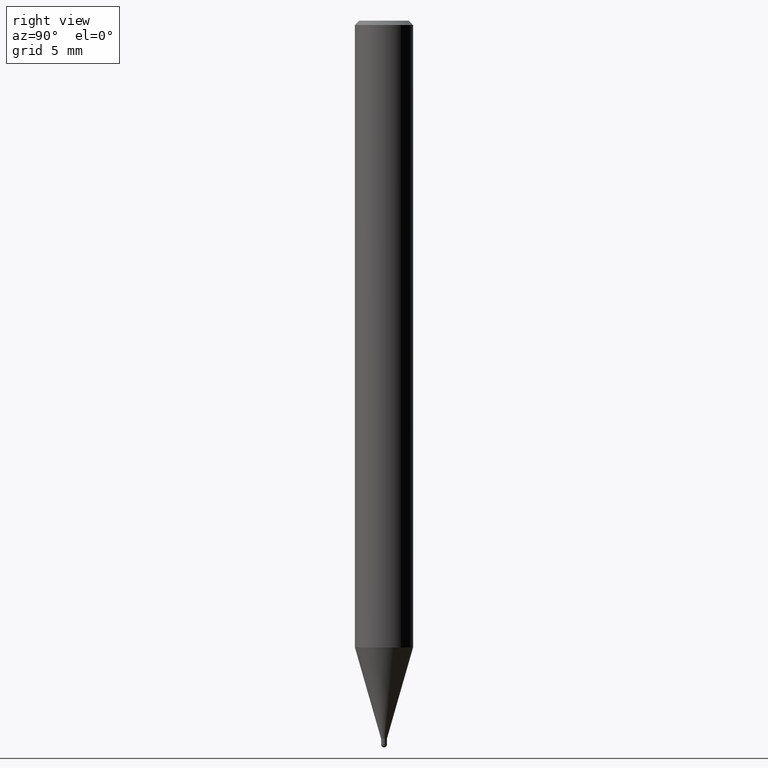
[diagram: clean part render]
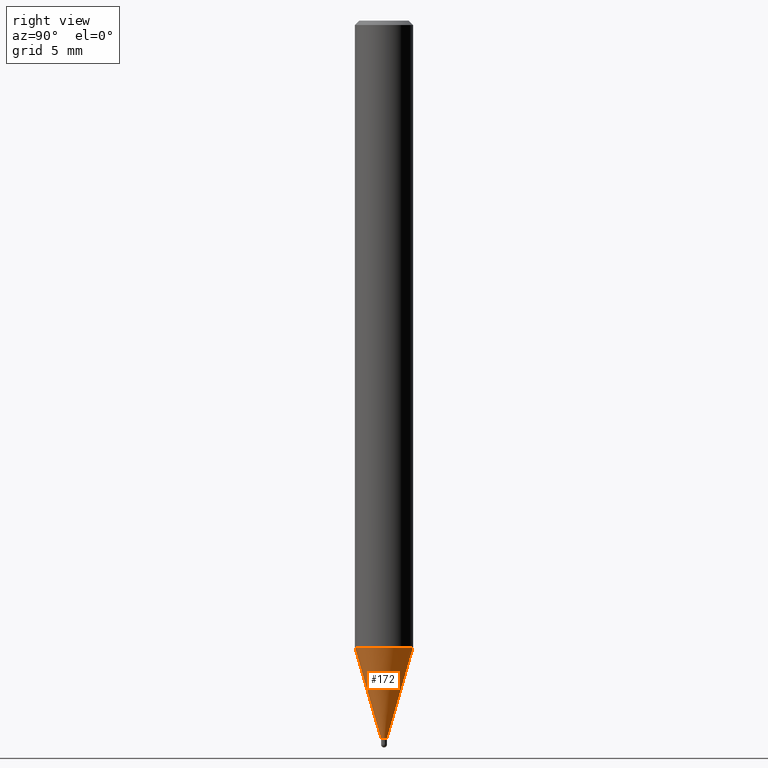
[diagram: same view with one face highlighted and labeled with its STEP entity id]
A machine part, right view. The second image highlights one B-rep face of the part: STEP entity #172.
In plain terms, the highlighted conical surface has half-angle 16.001 deg.
Its self-contained STEP definition (entity closure, byte-faithful):
#86=VERTEX_POINT('',#211);
#88=EDGE_CURVE('',#86,#114,#213,.T.);
#102=EDGE_CURVE('',#180,#114,#227,.T.);
#106=EDGE_CURVE('',#180,#158,#232,.T.);
#114=VERTEX_POINT('',#241);
#132=EDGE_CURVE('',#158,#86,#261,.T.);
#158=VERTEX_POINT('',#294);
#172=ADVANCED_FACE('',(#309),#310,.T.);
#180=VERTEX_POINT('',#320);
#211=CARTESIAN_POINT('',(2.44860040446785E-017,-0.19995,-49.4));
#213=LINE('',#346,#347);
#227=CIRCLE('',#369,1.99995);
#232=LINE('',#375,#376);
#241=CARTESIAN_POINT('',(2.44915147732706E-016,-1.99995,-43.123));
#261=CIRCLE('',#415,0.19995);
#294=CARTESIAN_POINT('',(0.0,0.19995,-49.4));
#309=FACE_OUTER_BOUND('',#467,.T.);
#310=CONICAL_SURFACE('',#468,1.09995,0.279267285283396);
#320=CARTESIAN_POINT('',(0.0,1.99995,-43.123));
#346=CARTESIAN_POINT('',(1.34700575888692E-016,-1.09995,-46.2615));
#347=VECTOR('',#493,1.0);
#369=AXIS2_PLACEMENT_3D('',#505,#506,#507);
#375=CARTESIAN_POINT('',(-1.34700575888692E-016,1.09995,-46.2615));
#376=VECTOR('',#516,1.0);
#415=AXIS2_PLACEMENT_3D('',#549,#550,#551);
#467=EDGE_LOOP('',(#614,#615,#616,#617));
#468=AXIS2_PLACEMENT_3D('',#618,#619,#620);
#493=DIRECTION('',(3.37564449732947E-017,-0.275651394980357,0.961257670162056));
#505=CARTESIAN_POINT('',(0.0,0.0,-43.123));
#506=DIRECTION('',(0.0,0.0,-1.0));
#507=DIRECTION('',(0.0,1.0,0.0));
#516=DIRECTION('',(3.37564449732947E-017,-0.275651394980357,-0.961257670162056));
#549=CARTESIAN_POINT('',(0.0,0.0,-49.4));
#550=DIRECTION('',(0.0,0.0,-1.0));
#551=DIRECTION('',(0.0,1.0,0.0));
#614=ORIENTED_EDGE('',*,*,#106,.F.);
#615=ORIENTED_EDGE('',*,*,#102,.T.);
#616=ORIENTED_EDGE('',*,*,#88,.F.);
#617=ORIENTED_EDGE('',*,*,#132,.F.);
#618=CARTESIAN_POINT('',(0.0,0.0,-46.2615));
#619=DIRECTION('',(-0.0,-0.0,1.0));
#620=DIRECTION('',(0.0,1.0,0.0));